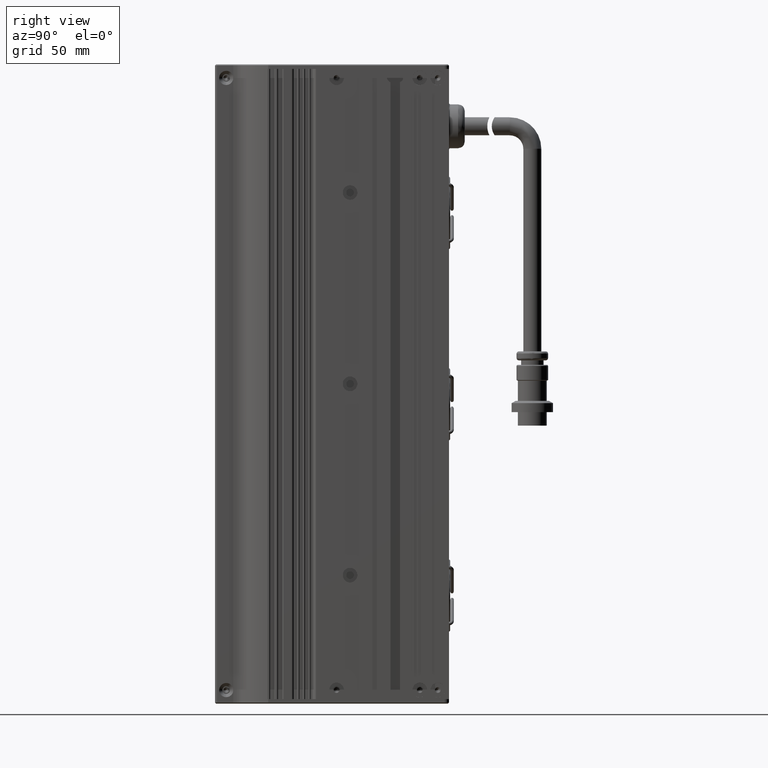
[diagram: clean part render]
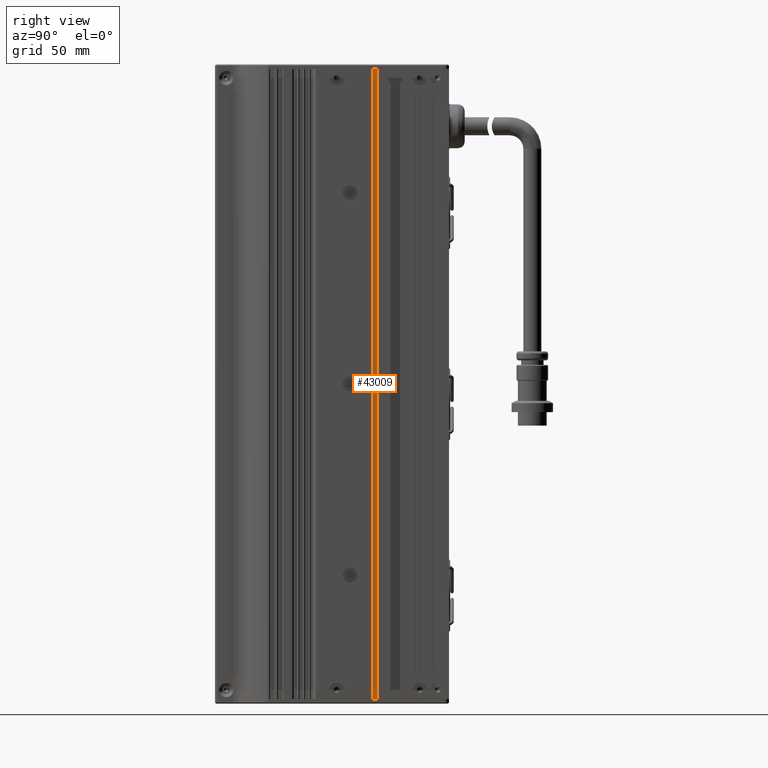
[diagram: same view with one face highlighted and labeled with its STEP entity id]
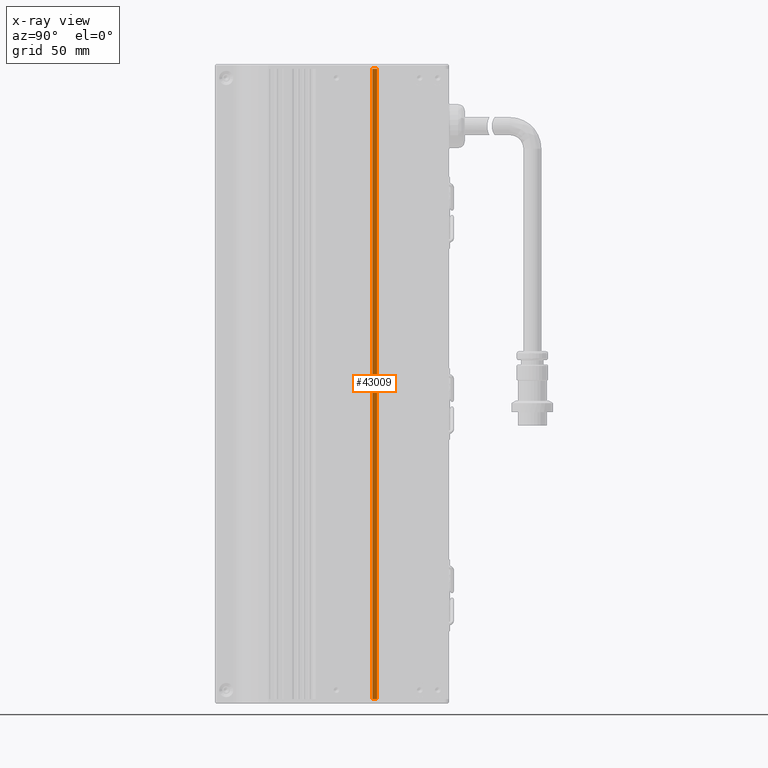
[diagram: x-ray of the same camera — body ghosted, the highlighted face saturated]
A machine part, right view. The second image highlights one B-rep face of the part: STEP entity #43009.
The next image is the same camera in x-ray: the body ghosted, the highlighted face saturated — about 0% of this face is hidden behind the body in this view.
In plain terms, the highlighted planar face has unit normal (-1, 0, 0).
Its self-contained STEP definition (entity closure, byte-faithful):
#3114 = EDGE_CURVE ( 'NONE', #33355, #127787, #120858, .T. ) ;
#8406 = ORIENTED_EDGE ( 'NONE', *, *, #3114, .F. ) ;
#9790 = AXIS2_PLACEMENT_3D ( 'NONE', #93630, #75012, #73757 ) ;
#11254 = DIRECTION ( 'NONE',  ( -0.0000000000000000000, -0.0000000000000000000, -1.000000000000000000 ) ) ;
#11499 = ORIENTED_EDGE ( 'NONE', *, *, #82746, .F. ) ;
#18005 = ORIENTED_EDGE ( 'NONE', *, *, #30553, .F. ) ;
#18078 = CARTESIAN_POINT ( 'NONE',  ( -14.06201180637544100, 10.00452420306966400, 140.0000000000000000 ) ) ;
#21644 = ORIENTED_EDGE ( 'NONE', *, *, #46836, .T. ) ;
#24098 = DIRECTION ( 'NONE',  ( 0.0000000000000000000, 1.000000000000000000, -0.0000000000000000000 ) ) ;
#30553 = EDGE_CURVE ( 'NONE', #48630, #96190, #69575, .T. ) ;
#33355 = VERTEX_POINT ( 'NONE', #109393 ) ;
#43009 = ADVANCED_FACE ( 'NONE', ( #84644 ), #84143, .F. ) ;
#46778 = DIRECTION ( 'NONE',  ( 0.0000000000000000000, 0.0000000000000000000, 1.000000000000000000 ) ) ;
#46836 = EDGE_CURVE ( 'NONE', #48630, #127787, #120426, .T. ) ;
#48630 = VERTEX_POINT ( 'NONE', #84720 ) ;
#49029 = VECTOR ( 'NONE', #55936, 1000.000000000000000 ) ;
#52218 = CARTESIAN_POINT ( 'NONE',  ( -14.06201180637544100, 12.00452420306966400, -140.0000000000000000 ) ) ;
#55936 = DIRECTION ( 'NONE',  ( 0.0000000000000000000, 1.000000000000000000, -0.0000000000000000000 ) ) ;
#58921 = CARTESIAN_POINT ( 'NONE',  ( -14.06201180637544100, 12.00452420306966400, 140.0000000000000000 ) ) ;
#61440 = LINE ( 'NONE', #123780, #49029 ) ;
#63768 = VECTOR ( 'NONE', #11254, 1000.000000000000000 ) ;
#69575 = LINE ( 'NONE', #124147, #106631 ) ;
#73757 = DIRECTION ( 'NONE',  ( 0.0000000000000000000, 0.0000000000000000000, 1.000000000000000000 ) ) ;
#75012 = DIRECTION ( 'NONE',  ( -1.000000000000000000, 0.0000000000000000000, 0.0000000000000000000 ) ) ;
#82746 = EDGE_CURVE ( 'NONE', #96190, #33355, #61440, .T. ) ;
#84143 = PLANE ( 'NONE',  #9790 ) ;
#84644 = FACE_OUTER_BOUND ( 'NONE', #126934, .T. ) ;
#84720 = CARTESIAN_POINT ( 'NONE',  ( -14.06201180637544100, 10.00452420306966400, -140.0000000000000000 ) ) ;
#93630 = CARTESIAN_POINT ( 'NONE',  ( -14.06201180637544100, 12.00452420306966400, 140.0000000000000000 ) ) ;
#96190 = VERTEX_POINT ( 'NONE', #18078 ) ;
#101704 = CARTESIAN_POINT ( 'NONE',  ( -14.06201180637544100, 12.00452420306966400, -140.0000000000000000 ) ) ;
#106631 = VECTOR ( 'NONE', #46778, 1000.000000000000000 ) ;
#109393 = CARTESIAN_POINT ( 'NONE',  ( -14.06201180637544100, 12.00452420306966400, 140.0000000000000000 ) ) ;
#120426 = LINE ( 'NONE', #52218, #122051 ) ;
#120858 = LINE ( 'NONE', #58921, #63768 ) ;
#122051 = VECTOR ( 'NONE', #24098, 1000.000000000000000 ) ;
#123780 = CARTESIAN_POINT ( 'NONE',  ( -14.06201180637544100, 2.004524203069662400, 140.0000000000000000 ) ) ;
#124147 = CARTESIAN_POINT ( 'NONE',  ( -14.06201180637544100, 10.00452420306966400, 140.0000000000000000 ) ) ;
#126934 = EDGE_LOOP ( 'NONE', ( #8406, #11499, #18005, #21644 ) ) ;
#127787 = VERTEX_POINT ( 'NONE', #101704 ) ;